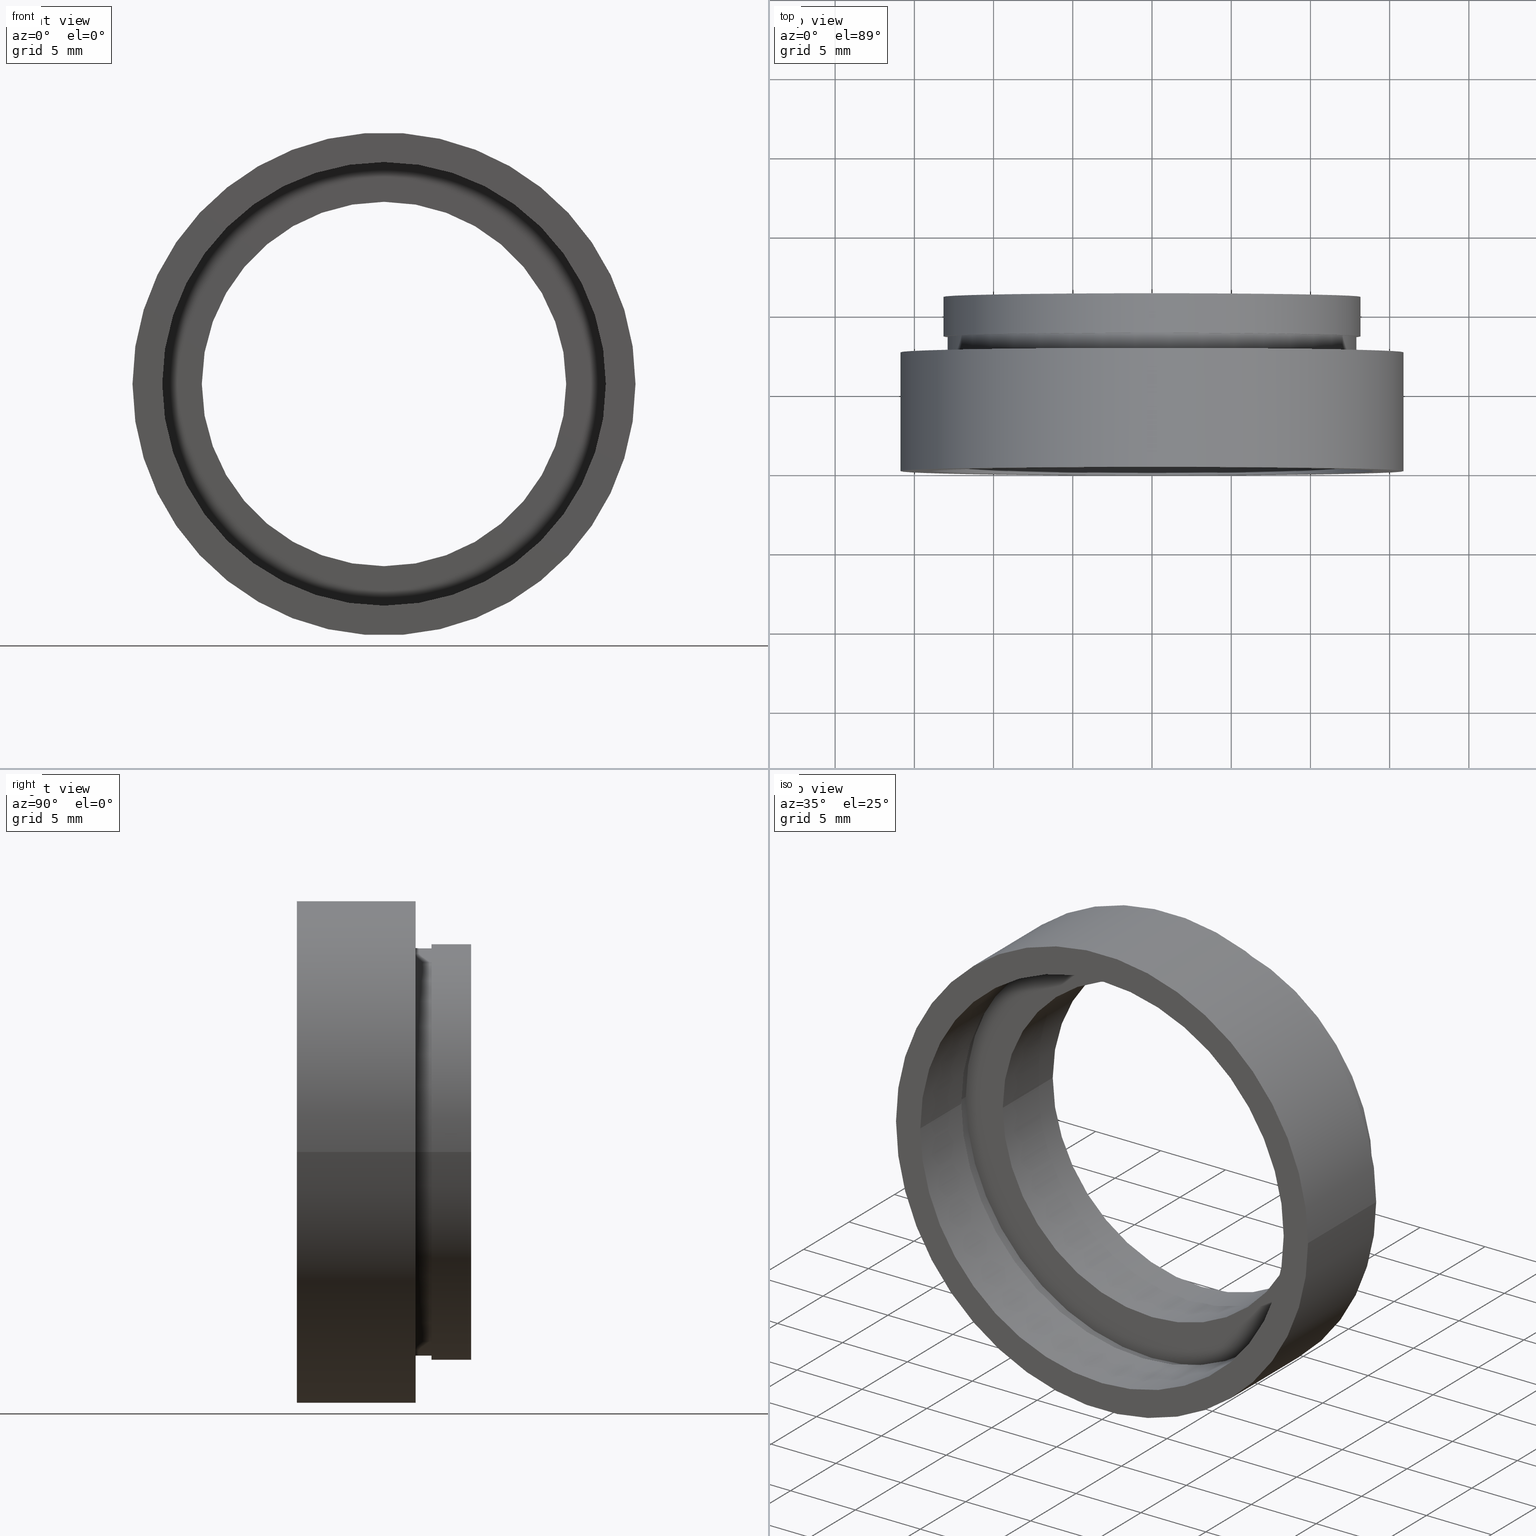
[diagram: canonical four-view strip — front | top / right | iso, engineering-drawing reading convention]
A machine part, canonical four-view strip (front | top / right | iso — engineering-drawing reading convention). The complete STEP part file that produces these views, byte-faithful:
ISO-10303-21;
HEADER;
FILE_DESCRIPTION (( 'STEP AP214' ),
    '1' );
FILE_NAME ('504115.STEP',
    '2019-10-10T01:14:32',
    ( '' ),
    ( '' ),
    'SwSTEP 2.0',
    'SolidWorks 2016',
    '' );
FILE_SCHEMA (( 'AUTOMOTIVE_DESIGN' ));
ENDSEC;

DATA;
#1 = EDGE_CURVE ( 'NONE', #459, #470, #339, .T. ) ;
#2 = VECTOR ( 'NONE', #235, 1000.000000000000000 ) ;
#3 = EDGE_LOOP ( 'NONE', ( #620, #608, #533, #376 ) ) ;
#4 = ORIENTED_EDGE ( 'NONE', *, *, #34, .T. ) ;
#5 = FACE_OUTER_BOUND ( 'NONE', #163, .T. ) ;
#6 = VERTEX_POINT ( 'NONE', #589 ) ;
#7 = UNCERTAINTY_MEASURE_WITH_UNIT (LENGTH_MEASURE( 1.000000000000000100E-005 ), #547, 'distance_accuracy_value', 'NONE');
#8 = AXIS2_PLACEMENT_3D ( 'NONE', #452, #14, #49 ) ;
#9 = CIRCLE ( 'NONE', #486, 15.87500000000000000 ) ;
#10 = ORIENTED_EDGE ( 'NONE', *, *, #146, .T. ) ;
#11 = VERTEX_POINT ( 'NONE', #244 ) ;
#12 = PLANE ( 'NONE',  #205 ) ;
#13 = FACE_BOUND ( 'NONE', #592, .T. ) ;
#14 = DIRECTION ( 'NONE',  ( -1.224646799147351000E-016, 1.000000000000000000, -0.0000000000000000000 ) ) ;
#15 = VERTEX_POINT ( 'NONE', #344 ) ;
#16 = SURFACE_STYLE_FILL_AREA ( #340 ) ;
#17 = CARTESIAN_POINT ( 'NONE',  ( 1.394385078907593200E-015, 5.499999999999996400, 0.0000000000000000000 ) ) ;
#18 = MECHANICAL_DESIGN_GEOMETRIC_PRESENTATION_REPRESENTATION (  '', ( #525 ), #315 ) ;
#19 =( NAMED_UNIT ( * ) SI_UNIT ( $, .STERADIAN. ) SOLID_ANGLE_UNIT ( ) );
#20 = EDGE_LOOP ( 'NONE', ( #598, #274, #438, #618 ) ) ;
#21 = CARTESIAN_POINT ( 'NONE',  ( 0.0000000000000000000, 16.88601823708207700, 0.0000000000000000000 ) ) ;
#22 = AXIS2_PLACEMENT_3D ( 'NONE', #169, #28, #563 ) ;
#23 =( GEOMETRIC_REPRESENTATION_CONTEXT ( 3 ) GLOBAL_UNCERTAINTY_ASSIGNED_CONTEXT ( ( #282 ) ) GLOBAL_UNIT_ASSIGNED_CONTEXT ( ( #416, #373, #519 ) ) REPRESENTATION_CONTEXT ( 'NONE', 'WORKASPACE' ) );
#24 = CARTESIAN_POINT ( 'NONE',  ( 0.0000000000000000000, 16.88601823708207700, 0.0000000000000000000 ) ) ;
#25 = VERTEX_POINT ( 'NONE', #405 ) ;
#26 = EDGE_CURVE ( 'NONE', #422, #333, #98, .T. ) ;
#27 = CARTESIAN_POINT ( 'NONE',  ( 14.35000000000000000, 5.499999999999998200, 1.757368156776451600E-015 ) ) ;
#28 = DIRECTION ( 'NONE',  ( -1.224646799147351000E-016, 1.000000000000000000, -0.0000000000000000000 ) ) ;
#29 = CARTESIAN_POINT ( 'NONE',  ( 14.00000000000000200, 16.88601823708207700, 1.714505518806294800E-015 ) ) ;
#30 = DIRECTION ( 'NONE',  ( -1.000000000000000000, -1.318178933113075200E-016, 0.0000000000000000000 ) ) ;
#31 = ORIENTED_EDGE ( 'NONE', *, *, #87, .T. ) ;
#32 = SURFACE_STYLE_USAGE ( .BOTH. , #121 ) ;
#33 = EDGE_CURVE ( 'NONE', #25, #195, #305, .T. ) ;
#34 = EDGE_CURVE ( 'NONE', #374, #433, #264, .T. ) ;
#35 = CIRCLE ( 'NONE', #227, 14.00000000000000200 ) ;
#36 = ORIENTED_EDGE ( 'NONE', *, *, #162, .F. ) ;
#37 = AXIS2_PLACEMENT_3D ( 'NONE', #550, #413, #256 ) ;
#38 = ORIENTED_EDGE ( 'NONE', *, *, #507, .T. ) ;
#39 = CIRCLE ( 'NONE', #481, 15.87499999999999600 ) ;
#40 = CYLINDRICAL_SURFACE ( 'NONE', #144, 14.00000000000000200 ) ;
#41 =( GEOMETRIC_REPRESENTATION_CONTEXT ( 3 ) GLOBAL_UNCERTAINTY_ASSIGNED_CONTEXT ( ( #571 ) ) GLOBAL_UNIT_ASSIGNED_CONTEXT ( ( #293, #174, #425 ) ) REPRESENTATION_CONTEXT ( 'NONE', 'WORKASPACE' ) );
#42 = CIRCLE ( 'NONE', #365, 14.34999999999999800 ) ;
#43 = ORIENTED_EDGE ( 'NONE', *, *, #511, .F. ) ;
#44 = STYLED_ITEM ( 'NONE', ( #434 ), #302 ) ;
#45 = EDGE_CURVE ( 'NONE', #395, #488, #35, .T. ) ;
#46 = CYLINDRICAL_SURFACE ( 'NONE', #604, 11.50000000000000000 ) ;
#47 = STYLED_ITEM ( 'NONE', ( #280 ), #621 ) ;
#48 = DIRECTION ( 'NONE',  ( -1.224646799147351000E-016, 1.000000000000000000, -0.0000000000000000000 ) ) ;
#49 = DIRECTION ( 'NONE',  ( -1.000000000000000000, -1.239088197126290600E-016, 0.0000000000000000000 ) ) ;
#50 = DIRECTION ( 'NONE',  ( -1.224646799147351000E-016, 1.000000000000000000, -0.0000000000000000000 ) ) ;
#51 = DIRECTION ( 'NONE',  ( -1.224646799147351000E-016, 1.000000000000000000, -0.0000000000000000000 ) ) ;
#52 = CARTESIAN_POINT ( 'NONE',  ( -14.34999999999999800, 16.88601823708207300, 0.0000000000000000000 ) ) ;
#53 = CARTESIAN_POINT ( 'NONE',  ( 0.0000000000000000000, 16.88601823708207700, 0.0000000000000000000 ) ) ;
#54 = DIRECTION ( 'NONE',  ( 1.000000000000000000, 1.224646799147351000E-016, 0.0000000000000000000 ) ) ;
#55 = CARTESIAN_POINT ( 'NONE',  ( 15.87500000000000000, -1.525320158307194900E-015, 1.944126793646423200E-015 ) ) ;
#56 = CYLINDRICAL_SURFACE ( 'NONE', #266, 15.87500000000000000 ) ;
#57 = PRESENTATION_STYLE_ASSIGNMENT (( #501 ) ) ;
#58 = CARTESIAN_POINT ( 'NONE',  ( 1.516849758822328300E-015, 4.499999999999997300, 0.0000000000000000000 ) ) ;
#59 = DIRECTION ( 'NONE',  ( -1.000000000000000000, -1.508455196501571400E-016, 0.0000000000000000000 ) ) ;
#60 = ADVANCED_FACE ( 'NONE', ( #516, #278 ), #610, .F. ) ;
#61 = CARTESIAN_POINT ( 'NONE',  ( 0.0000000000000000000, 16.88601823708207700, 0.0000000000000000000 ) ) ;
#62 = DIRECTION ( 'NONE',  ( -1.000000000000000000, 0.0000000000000000000, 0.0000000000000000000 ) ) ;
#63 = EDGE_CURVE ( 'NONE', #472, #25, #42, .T. ) ;
#64 = ORIENTED_EDGE ( 'NONE', *, *, #495, .F. ) ;
#65 = PRODUCT ( '504115', '504115', '', ( #269 ) ) ;
#66 = CARTESIAN_POINT ( 'NONE',  ( 11.50000000000000200, 10.99999999999999800, 1.408343819019456600E-015 ) ) ;
#67 = VERTEX_POINT ( 'NONE', #27 ) ;
#68 = CARTESIAN_POINT ( 'NONE',  ( -11.49999999999999800, 5.499999999999996400, 0.0000000000000000000 ) ) ;
#69 = PRESENTATION_LAYER_ASSIGNMENT (  '', '', ( #177 ) ) ;
#70 = CARTESIAN_POINT ( 'NONE',  ( 15.87500000000000000, -1.944126793646426700E-016, 0.0000000000000000000 ) ) ;
#71 =( NAMED_UNIT ( * ) SI_UNIT ( $, .STERADIAN. ) SOLID_ANGLE_UNIT ( ) );
#72 = CIRCLE ( 'NONE', #575, 13.15999999999999800 ) ;
#73 = CARTESIAN_POINT ( 'NONE',  ( 1.149455719078122700E-015, 7.499999999999998200, 0.0000000000000000000 ) ) ;
#74 = CARTESIAN_POINT ( 'NONE',  ( 13.16000000000000200, 8.500000000000000000, 1.611635187677917100E-015 ) ) ;
#75 = SURFACE_SIDE_STYLE ('',( #131 ) ) ;
#76 = DIRECTION ( 'NONE',  ( -1.000000000000000000, -1.208866533781747400E-016, 0.0000000000000000000 ) ) ;
#77 = DIRECTION ( 'NONE',  ( -1.000000000000000000, -2.185478394931410600E-016, 0.0000000000000000000 ) ) ;
#78 = MECHANICAL_DESIGN_GEOMETRIC_PRESENTATION_REPRESENTATION (  '', ( #47 ), #107 ) ;
#79 = FACE_OUTER_BOUND ( 'NONE', #584, .T. ) ;
#80 = UNCERTAINTY_MEASURE_WITH_UNIT (LENGTH_MEASURE( 1.000000000000000100E-005 ), #462, 'distance_accuracy_value', 'NONE');
#81 = AXIS2_PLACEMENT_3D ( 'NONE', #204, #599, #59 ) ;
#82 = FACE_OUTER_BOUND ( 'NONE', #582, .T. ) ;
#83 = EDGE_LOOP ( 'NONE', ( #295, #499, #179, #391 ) ) ;
#84 = ADVANCED_FACE ( 'NONE', ( #469, #420 ), #272, .F. ) ;
#85 = MECHANICAL_DESIGN_GEOMETRIC_PRESENTATION_REPRESENTATION (  '', ( #424 ), #396 ) ;
#86 = FACE_OUTER_BOUND ( 'NONE', #612, .T. ) ;
#87 = EDGE_CURVE ( 'NONE', #351, #138, #326, .T. ) ;
#88 = COLOUR_RGB ( '',1.000000000000000000, 1.000000000000000000, 1.000000000000000000 ) ;
#89 = ORIENTED_EDGE ( 'NONE', *, *, #467, .F. ) ;
#90 = ORIENTED_EDGE ( 'NONE', *, *, #325, .T. ) ;
#91 = CYLINDRICAL_SURFACE ( 'NONE', #417, 12.90000000000000000 ) ;
#92 = EDGE_LOOP ( 'NONE', ( #233, #90, #389, #129 ) ) ;
#93 = ORIENTED_EDGE ( 'NONE', *, *, #257, .F. ) ;
#94 = EDGE_CURVE ( 'NONE', #433, #240, #370, .T. ) ;
#95 = PRESENTATION_STYLE_ASSIGNMENT (( #354 ) ) ;
#96 = MECHANICAL_DESIGN_GEOMETRIC_PRESENTATION_REPRESENTATION (  '', ( #44 ), #41 ) ;
#97 = DIRECTION ( 'NONE',  ( -1.000000000000000000, -1.318178933113075200E-016, 0.0000000000000000000 ) ) ;
#98 = LINE ( 'NONE', #102, #239 ) ;
#99 = ORIENTED_EDGE ( 'NONE', *, *, #467, .T. ) ;
#100 = CARTESIAN_POINT ( 'NONE',  ( 12.90000000000000000, 16.88601823708207700, 1.579794370900085700E-015 ) ) ;
#101 = ORIENTED_EDGE ( 'NONE', *, *, #136, .F. ) ;
#102 = CARTESIAN_POINT ( 'NONE',  ( -11.50000000000000000, 16.88601823708207700, 0.0000000000000000000 ) ) ;
#103 = PRESENTATION_STYLE_ASSIGNMENT (( #606 ) ) ;
#104 = CIRCLE ( 'NONE', #236, 14.34999999999999800 ) ;
#105 =( NAMED_UNIT ( * ) PLANE_ANGLE_UNIT ( ) SI_UNIT ( $, .RADIAN. ) );
#106 = CLOSED_SHELL ( 'NONE', ( #113, #387, #621, #302, #624, #260, #323, #196, #411, #577, #60, #552, #84, #181, #352, #277, #549, #384 ) ) ;
#107 =( GEOMETRIC_REPRESENTATION_CONTEXT ( 3 ) GLOBAL_UNCERTAINTY_ASSIGNED_CONTEXT ( ( #80 ) ) GLOBAL_UNIT_ASSIGNED_CONTEXT ( ( #462, #261, #602 ) ) REPRESENTATION_CONTEXT ( 'NONE', 'WORKASPACE' ) );
#108 = FILL_AREA_STYLE_COLOUR ( '', #564 ) ;
#109 = CARTESIAN_POINT ( 'NONE',  ( 14.00000000000000400, 4.500000000000000900, 1.714505518806294800E-015 ) ) ;
#110 = EDGE_LOOP ( 'NONE', ( #99, #141, #226, #500 ) ) ;
#111 = PRESENTATION_STYLE_ASSIGNMENT (( #271 ) ) ;
#112 = DIRECTION ( 'NONE',  ( -1.224646799147351000E-016, 1.000000000000000000, -0.0000000000000000000 ) ) ;
#113 = ADVANCED_FACE ( 'NONE', ( #496 ), #178, .T. ) ;
#114 = AXIS2_PLACEMENT_3D ( 'NONE', #132, #471, #512 ) ;
#115 = EDGE_LOOP ( 'NONE', ( #490, #558 ) ) ;
#116 = CARTESIAN_POINT ( 'NONE',  ( 2.067940818438636100E-015, 0.0000000000000000000, 0.0000000000000000000 ) ) ;
#117 = CARTESIAN_POINT ( 'NONE',  ( 1.516849758822328100E-015, 4.499999999999999100, 0.0000000000000000000 ) ) ;
#118 = FILL_AREA_STYLE_COLOUR ( '', #378 ) ;
#119 = DIRECTION ( 'NONE',  ( -1.000000000000000000, -1.092739197465705300E-016, 0.0000000000000000000 ) ) ;
#120 = AXIS2_PLACEMENT_3D ( 'NONE', #428, #170, #609 ) ;
#121 = SURFACE_SIDE_STYLE ('',( #475 ) ) ;
#122 = DIRECTION ( 'NONE',  ( -1.000000000000000000, -1.224646799147351000E-016, 0.0000000000000000000 ) ) ;
#123 = VERTEX_POINT ( 'NONE', #369 ) ;
#124 = DIRECTION ( 'NONE',  ( -1.224646799147351000E-016, 1.000000000000000000, -0.0000000000000000000 ) ) ;
#125 = EDGE_CURVE ( 'NONE', #219, #11, #217, .T. ) ;
#126 = DIRECTION ( 'NONE',  ( -1.000000000000000000, -1.224646799147351000E-016, 0.0000000000000000000 ) ) ;
#127 = EDGE_LOOP ( 'NONE', ( #524, #10, #234, #43 ) ) ;
#128 = DIRECTION ( 'NONE',  ( -1.000000000000000000, 0.0000000000000000000, 0.0000000000000000000 ) ) ;
#129 = ORIENTED_EDGE ( 'NONE', *, *, #507, .F. ) ;
#130 = DIRECTION ( 'NONE',  ( -1.224646799147351000E-016, 1.000000000000000000, -0.0000000000000000000 ) ) ;
#131 = SURFACE_STYLE_FILL_AREA ( #314 ) ;
#132 = CARTESIAN_POINT ( 'NONE',  ( 14.00000000000000400, 4.499999999999999100, 0.0000000000000000000 ) ) ;
#133 = EDGE_LOOP ( 'NONE', ( #483, #101 ) ) ;
#134 = EDGE_CURVE ( 'NONE', #15, #240, #556, .T. ) ;
#135 = VECTOR ( 'NONE', #591, 1000.000000000000000 ) ;
#136 = EDGE_CURVE ( 'NONE', #614, #333, #538, .T. ) ;
#137 = AXIS2_PLACEMENT_3D ( 'NONE', #70, #430, #122 ) ;
#138 = VERTEX_POINT ( 'NONE', #241 ) ;
#139 = ORIENTED_EDGE ( 'NONE', *, *, #63, .T. ) ;
#140 = PRESENTATION_LAYER_ASSIGNMENT (  '', '', ( #525 ) ) ;
#141 = ORIENTED_EDGE ( 'NONE', *, *, #534, .T. ) ;
#142 = UNCERTAINTY_MEASURE_WITH_UNIT (LENGTH_MEASURE( 1.000000000000000100E-005 ), #317, 'distance_accuracy_value', 'NONE');
#143 = AXIS2_PLACEMENT_3D ( 'NONE', #208, #541, #192 ) ;
#144 = AXIS2_PLACEMENT_3D ( 'NONE', #24, #124, #62 ) ;
#145 = VECTOR ( 'NONE', #449, 1000.000000000000000 ) ;
#146 = EDGE_CURVE ( 'NONE', #11, #351, #437, .T. ) ;
#147 = DIRECTION ( 'NONE',  ( -1.000000000000000000, -1.508455196501571200E-016, 0.0000000000000000000 ) ) ;
#148 = DIRECTION ( 'NONE',  ( -1.224646799147351000E-016, 1.000000000000000000, -0.0000000000000000000 ) ) ;
#149 = PRODUCT_DEFINITION_FORMATION_WITH_SPECIFIED_SOURCE ( '�κ�', '', #65, .NOT_KNOWN. ) ;
#150 = DIRECTION ( 'NONE',  ( -1.224646799147351000E-016, 1.000000000000000000, -0.0000000000000000000 ) ) ;
#151 = CARTESIAN_POINT ( 'NONE',  ( -14.34999999999999600, 5.499999999999994700, 0.0000000000000000000 ) ) ;
#152 = DIRECTION ( 'NONE',  ( -1.000000000000000000, -2.417733067563494800E-016, 0.0000000000000000000 ) ) ;
#153 = DIRECTION ( 'NONE',  ( -1.224646799147351000E-016, 1.000000000000000000, -0.0000000000000000000 ) ) ;
#154 = ORIENTED_EDGE ( 'NONE', *, *, #585, .T. ) ;
#155 = CARTESIAN_POINT ( 'NONE',  ( -14.00000000000000200, 16.88601823708207700, 0.0000000000000000000 ) ) ;
#156 = DIRECTION ( 'NONE',  ( -1.224646799147351000E-016, 1.000000000000000000, -0.0000000000000000000 ) ) ;
#157 = DIRECTION ( 'NONE',  ( -1.224646799147351000E-016, 1.000000000000000000, -0.0000000000000000000 ) ) ;
#158 = MECHANICAL_DESIGN_GEOMETRIC_PRESENTATION_REPRESENTATION (  '', ( #321 ), #187 ) ;
#159 = CARTESIAN_POINT ( 'NONE',  ( 7.208293393765502500E-016, 10.99999999999999600, 0.0000000000000000000 ) ) ;
#160 = DIRECTION ( 'NONE',  ( -1.000000000000000000, -1.224646799147350700E-016, 0.0000000000000000000 ) ) ;
#161 = FILL_AREA_STYLE_COLOUR ( '', #523 ) ;
#162 = EDGE_CURVE ( 'NONE', #472, #67, #588, .T. ) ;
#163 = EDGE_LOOP ( 'NONE', ( #531, #139 ) ) ;
#164 = DIRECTION ( 'NONE',  ( -1.224646799147351000E-016, 1.000000000000000000, -0.0000000000000000000 ) ) ;
#165 = ORIENTED_EDGE ( 'NONE', *, *, #573, .F. ) ;
#166 = CARTESIAN_POINT ( 'NONE',  ( 1.149455719078122700E-015, 7.499999999999998200, 0.0000000000000000000 ) ) ;
#167 = AXIS2_PLACEMENT_3D ( 'NONE', #587, #291, #508 ) ;
#168 =( NAMED_UNIT ( * ) PLANE_ANGLE_UNIT ( ) SI_UNIT ( $, .RADIAN. ) );
#169 = CARTESIAN_POINT ( 'NONE',  ( 2.067940818438636500E-015, -3.469446951953614200E-015, 0.0000000000000000000 ) ) ;
#170 = DIRECTION ( 'NONE',  ( -1.224646799147351000E-016, 1.000000000000000000, -0.0000000000000000000 ) ) ;
#171 = DIRECTION ( 'NONE',  ( 1.224646799147351000E-016, -1.000000000000000000, 0.0000000000000000000 ) ) ;
#172 = CARTESIAN_POINT ( 'NONE',  ( 0.0000000000000000000, 16.88601823708207700, 0.0000000000000000000 ) ) ;
#173 = CARTESIAN_POINT ( 'NONE',  ( 1.026991039163387700E-015, 8.499999999999998200, 0.0000000000000000000 ) ) ;
#174 =( NAMED_UNIT ( * ) PLANE_ANGLE_UNIT ( ) SI_UNIT ( $, .RADIAN. ) );
#175 = EDGE_LOOP ( 'NONE', ( #478, #590 ) ) ;
#176 = CIRCLE ( 'NONE', #385, 11.50000000000000000 ) ;
#177 = STYLED_ITEM ( 'NONE', ( #95 ), #552 ) ;
#178 = CYLINDRICAL_SURFACE ( 'NONE', #517, 15.87500000000000000 ) ;
#179 = ORIENTED_EDGE ( 'NONE', *, *, #532, .T. ) ;
#180 = PRESENTATION_LAYER_ASSIGNMENT (  '', '', ( #44 ) ) ;
#181 = ADVANCED_FACE ( 'NONE', ( #399 ), #435, .T. ) ;
#182 = COLOUR_RGB ( '',1.000000000000000000, 1.000000000000000000, 1.000000000000000000 ) ;
#183 = CYLINDRICAL_SURFACE ( 'NONE', #342, 14.34999999999999800 ) ;
#184 = FACE_BOUND ( 'NONE', #232, .T. ) ;
#185 = EDGE_CURVE ( 'NONE', #394, #614, #330, .T. ) ;
#186 = ORIENTED_EDGE ( 'NONE', *, *, #491, .T. ) ;
#187 =( GEOMETRIC_REPRESENTATION_CONTEXT ( 3 ) GLOBAL_UNCERTAINTY_ASSIGNED_CONTEXT ( ( #457 ) ) GLOBAL_UNIT_ASSIGNED_CONTEXT ( ( #191, #105, #19 ) ) REPRESENTATION_CONTEXT ( 'NONE', 'WORKASPACE' ) );
#188 = EDGE_LOOP ( 'NONE', ( #484, #4, #576, #281 ) ) ;
#189 = EDGE_CURVE ( 'NONE', #240, #433, #616, .T. ) ;
#190 = EDGE_LOOP ( 'NONE', ( #485, #343, #615, #218 ) ) ;
#191 =( LENGTH_UNIT ( ) NAMED_UNIT ( * ) SI_UNIT ( .MILLI., .METRE. ) );
#192 = DIRECTION ( 'NONE',  ( -1.000000000000000000, -1.344746880602176000E-016, 0.0000000000000000000 ) ) ;
#193 = CARTESIAN_POINT ( 'NONE',  ( 11.50000000000000000, 16.88601823708207700, 1.408343819019456200E-015 ) ) ;
#194 = DIRECTION ( 'NONE',  ( -1.000000000000000000, 0.0000000000000000000, 0.0000000000000000000 ) ) ;
#195 = VERTEX_POINT ( 'NONE', #151 ) ;
#196 = ADVANCED_FACE ( 'NONE', ( #505 ), #318, .F. ) ;
#197 = FILL_AREA_STYLE_COLOUR ( '', #201 ) ;
#198 = CARTESIAN_POINT ( 'NONE',  ( 1.026991039163387700E-015, 8.499999999999998200, 0.0000000000000000000 ) ) ;
#199 = PRESENTATION_STYLE_ASSIGNMENT (( #308 ) ) ;
#200 = PRODUCT_RELATED_PRODUCT_CATEGORY ( 'part', '', ( #65 ) ) ;
#201 = COLOUR_RGB ( '',1.000000000000000000, 1.000000000000000000, 1.000000000000000000 ) ;
#202 = DIRECTION ( 'NONE',  ( -1.000000000000000000, -1.239088197126290600E-016, 0.0000000000000000000 ) ) ;
#203 = SURFACE_SIDE_STYLE ('',( #228 ) ) ;
#204 = CARTESIAN_POINT ( 'NONE',  ( 1.394385078907593000E-015, 5.499999999999998200, 0.0000000000000000000 ) ) ;
#205 = AXIS2_PLACEMENT_3D ( 'NONE', #450, #303, #54 ) ;
#206 = SURFACE_SIDE_STYLE ('',( #454 ) ) ;
#207 = ORIENTED_EDGE ( 'NONE', *, *, #33, .F. ) ;
#208 = CARTESIAN_POINT ( 'NONE',  ( 1.026991039163387700E-015, 8.499999999999998200, 0.0000000000000000000 ) ) ;
#209 = CARTESIAN_POINT ( 'NONE',  ( 0.0000000000000000000, 16.88601823708207700, 0.0000000000000000000 ) ) ;
#210 = AXIS2_PLACEMENT_3D ( 'NONE', #456, #48, #346 ) ;
#211 = CARTESIAN_POINT ( 'NONE',  ( 13.16000000000000000, 8.500000000000000000, 0.0000000000000000000 ) ) ;
#212 = FILL_AREA_STYLE_COLOUR ( '', #400 ) ;
#213 = LINE ( 'NONE', #402, #397 ) ;
#214 = DIRECTION ( 'NONE',  ( -1.000000000000000000, -2.185478394931410600E-016, 0.0000000000000000000 ) ) ;
#215 =( LENGTH_UNIT ( ) NAMED_UNIT ( * ) SI_UNIT ( .MILLI., .METRE. ) );
#216 = DIRECTION ( 'NONE',  ( 1.000000000000000000, 1.224646799147351000E-016, 0.0000000000000000000 ) ) ;
#217 = CIRCLE ( 'NONE', #464, 12.90000000000000000 ) ;
#218 = ORIENTED_EDGE ( 'NONE', *, *, #94, .F. ) ;
#219 = VERTEX_POINT ( 'NONE', #368 ) ;
#220 = CARTESIAN_POINT ( 'NONE',  ( 14.00000000000000400, 1.714505518806291700E-015, 1.714505518806294800E-015 ) ) ;
#221 = DIRECTION ( 'NONE',  ( -1.224646799147351000E-016, 1.000000000000000000, -0.0000000000000000000 ) ) ;
#222 = APPLICATION_CONTEXT ( 'automotive_design' ) ;
#223 = PRESENTATION_STYLE_ASSIGNMENT (( #290 ) ) ;
#224 = MANIFOLD_SOLID_BREP ( '��ת1', #106 ) ;
#225 =( GEOMETRIC_REPRESENTATION_CONTEXT ( 3 ) GLOBAL_UNCERTAINTY_ASSIGNED_CONTEXT ( ( #7 ) ) GLOBAL_UNIT_ASSIGNED_CONTEXT ( ( #547, #251, #297 ) ) REPRESENTATION_CONTEXT ( 'NONE', 'WORKASPACE' ) );
#226 = ORIENTED_EDGE ( 'NONE', *, *, #600, .F. ) ;
#227 = AXIS2_PLACEMENT_3D ( 'NONE', #418, #619, #126 ) ;
#228 = SURFACE_STYLE_FILL_AREA ( #506 ) ;
#229 = AXIS2_PLACEMENT_3D ( 'NONE', #211, #560, #522 ) ;
#230 = VECTOR ( 'NONE', #296, 1000.000000000000000 ) ;
#231 = ORIENTED_EDGE ( 'NONE', *, *, #476, .F. ) ;
#232 = EDGE_LOOP ( 'NONE', ( #231, #529 ) ) ;
#233 = ORIENTED_EDGE ( 'NONE', *, *, #534, .F. ) ;
#234 = ORIENTED_EDGE ( 'NONE', *, *, #491, .F. ) ;
#235 = DIRECTION ( 'NONE',  ( -1.224646799147351000E-016, 1.000000000000000000, -0.0000000000000000000 ) ) ;
#236 = AXIS2_PLACEMENT_3D ( 'NONE', #58, #247, #510 ) ;
#237 = VECTOR ( 'NONE', #358, 1000.000000000000000 ) ;
#238 = MECHANICAL_DESIGN_GEOMETRIC_PRESENTATION_REPRESENTATION (  '', ( #622 ), #23 ) ;
#239 = VECTOR ( 'NONE', #250, 1000.000000000000000 ) ;
#240 = VERTEX_POINT ( 'NONE', #603 ) ;
#241 = CARTESIAN_POINT ( 'NONE',  ( -12.89999999999999900, 8.499999999999996400, 0.0000000000000000000 ) ) ;
#242 = ORIENTED_EDGE ( 'NONE', *, *, #479, .F. ) ;
#243 = AXIS2_PLACEMENT_3D ( 'NONE', #61, #409, #310 ) ;
#244 = CARTESIAN_POINT ( 'NONE',  ( 12.90000000000000200, 7.500000000000000000, 1.579794370900085700E-015 ) ) ;
#245 = FACE_OUTER_BOUND ( 'NONE', #3, .T. ) ;
#246 = CARTESIAN_POINT ( 'NONE',  ( 7.208293393765502500E-016, 10.99999999999999600, 0.0000000000000000000 ) ) ;
#247 = DIRECTION ( 'NONE',  ( -1.224646799147351000E-016, 1.000000000000000000, -0.0000000000000000000 ) ) ;
#248 = ORIENTED_EDGE ( 'NONE', *, *, #600, .T. ) ;
#249 = VECTOR ( 'NONE', #543, 1000.000000000000000 ) ;
#250 = DIRECTION ( 'NONE',  ( -1.224646799147351000E-016, 1.000000000000000000, -0.0000000000000000000 ) ) ;
#251 =( NAMED_UNIT ( * ) PLANE_ANGLE_UNIT ( ) SI_UNIT ( $, .RADIAN. ) );
#252 = DIRECTION ( 'NONE',  ( -1.000000000000000000, -1.318178933113075500E-016, 0.0000000000000000000 ) ) ;
#253 = CARTESIAN_POINT ( 'NONE',  ( 1.026991039163387700E-015, 8.499999999999998200, 0.0000000000000000000 ) ) ;
#254 = ORIENTED_EDGE ( 'NONE', *, *, #325, .F. ) ;
#255 = FILL_AREA_STYLE_COLOUR ( '', #182 ) ;
#256 = DIRECTION ( 'NONE',  ( -1.000000000000000000, -1.208866533781747400E-016, 0.0000000000000000000 ) ) ;
#257 = EDGE_CURVE ( 'NONE', #11, #219, #348, .T. ) ;
#258 = DIRECTION ( 'NONE',  ( -1.224646799147351000E-016, 1.000000000000000000, -0.0000000000000000000 ) ) ;
#259 = CARTESIAN_POINT ( 'NONE',  ( 1.394385078907593000E-015, 5.499999999999998200, 0.0000000000000000000 ) ) ;
#260 = ADVANCED_FACE ( 'NONE', ( #245 ), #40, .F. ) ;
#261 =( NAMED_UNIT ( * ) PLANE_ANGLE_UNIT ( ) SI_UNIT ( $, .RADIAN. ) );
#262 = SURFACE_STYLE_USAGE ( .BOTH. , #206 ) ;
#263 = DIRECTION ( 'NONE',  ( -1.224646799147351000E-016, 1.000000000000000000, -0.0000000000000000000 ) ) ;
#264 = LINE ( 'NONE', #489, #2 ) ;
#265 = SURFACE_SIDE_STYLE ('',( #474 ) ) ;
#266 = AXIS2_PLACEMENT_3D ( 'NONE', #172, #263, #214 ) ;
#267 = DIRECTION ( 'NONE',  ( -1.224646799147351000E-016, 1.000000000000000000, -0.0000000000000000000 ) ) ;
#268 = DIRECTION ( 'NONE',  ( -1.224646799147351000E-016, 1.000000000000000000, 0.0000000000000000000 ) ) ;
#269 = PRODUCT_CONTEXT ( 'NONE', #611, 'mechanical' ) ;
#270 = ORIENTED_EDGE ( 'NONE', *, *, #26, .T. ) ;
#271 = SURFACE_STYLE_USAGE ( .BOTH. , #568 ) ;
#272 = PLANE ( 'NONE',  #436 ) ;
#273 = CARTESIAN_POINT ( 'NONE',  ( 0.0000000000000000000, 0.0000000000000000000, 0.0000000000000000000 ) ) ;
#274 = ORIENTED_EDGE ( 'NONE', *, *, #257, .T. ) ;
#275 = DIRECTION ( 'NONE',  ( 0.0000000000000000000, 0.0000000000000000000, 1.000000000000000000 ) ) ;
#276 = MECHANICAL_DESIGN_GEOMETRIC_PRESENTATION_REPRESENTATION (  '', ( #177 ), #304 ) ;
#277 = ADVANCED_FACE ( 'NONE', ( #404 ), #553, .T. ) ;
#278 = FACE_BOUND ( 'NONE', #539, .T. ) ;
#279 = PRESENTATION_LAYER_ASSIGNMENT (  '', '', ( #424 ) ) ;
#280 = PRESENTATION_STYLE_ASSIGNMENT (( #262 ) ) ;
#281 = ORIENTED_EDGE ( 'NONE', *, *, #134, .F. ) ;
#282 = UNCERTAINTY_MEASURE_WITH_UNIT (LENGTH_MEASURE( 1.000000000000000100E-005 ), #416, 'distance_accuracy_value', 'NONE');
#283 = AXIS2_PLACEMENT_3D ( 'NONE', #617, #221, #30 ) ;
#284 = SURFACE_STYLE_FILL_AREA ( #528 ) ;
#285 = VECTOR ( 'NONE', #545, 1000.000000000000000 ) ;
#286 = EDGE_CURVE ( 'NONE', #395, #459, #569, .T. ) ;
#287 = EDGE_LOOP ( 'NONE', ( #361, #93 ) ) ;
#288 = AXIS2_PLACEMENT_3D ( 'NONE', #117, #157, #202 ) ;
#289 = CIRCLE ( 'NONE', #410, 11.50000000000000200 ) ;
#290 = SURFACE_STYLE_USAGE ( .BOTH. , #586 ) ;
#291 = DIRECTION ( 'NONE',  ( -1.224646799147351000E-016, 1.000000000000000000, -0.0000000000000000000 ) ) ;
#292 = DIRECTION ( 'NONE',  ( -1.000000000000000000, -1.344746880602176000E-016, 0.0000000000000000000 ) ) ;
#293 =( LENGTH_UNIT ( ) NAMED_UNIT ( * ) SI_UNIT ( .MILLI., .METRE. ) );
#294 = CARTESIAN_POINT ( 'NONE',  ( 0.0000000000000000000, 16.88601823708207700, 0.0000000000000000000 ) ) ;
#295 = ORIENTED_EDGE ( 'NONE', *, *, #286, .F. ) ;
#296 = DIRECTION ( 'NONE',  ( -1.224646799147351000E-016, 1.000000000000000000, -0.0000000000000000000 ) ) ;
#297 =( NAMED_UNIT ( * ) SI_UNIT ( $, .STERADIAN. ) SOLID_ANGLE_UNIT ( ) );
#298 = DIRECTION ( 'NONE',  ( -1.000000000000000000, -1.318178933113075500E-016, 0.0000000000000000000 ) ) ;
#299 = PRESENTATION_LAYER_ASSIGNMENT (  '', '', ( #47 ) ) ;
#300 = CIRCLE ( 'NONE', #143, 12.90000000000000000 ) ;
#301 = CARTESIAN_POINT ( 'NONE',  ( 14.35000000000000000, 4.499999999999999100, 1.757368156776451600E-015 ) ) ;
#302 = ADVANCED_FACE ( 'NONE', ( #487 ), #593, .F. ) ;
#303 = DIRECTION ( 'NONE',  ( 1.224646799147351000E-016, -1.000000000000000000, 0.0000000000000000000 ) ) ;
#304 =( GEOMETRIC_REPRESENTATION_CONTEXT ( 3 ) GLOBAL_UNCERTAINTY_ASSIGNED_CONTEXT ( ( #331 ) ) GLOBAL_UNIT_ASSIGNED_CONTEXT ( ( #406, #594, #502 ) ) REPRESENTATION_CONTEXT ( 'NONE', 'WORKASPACE' ) );
#305 = LINE ( 'NONE', #52, #230 ) ;
#306 = DIRECTION ( 'NONE',  ( -1.000000000000000000, 0.0000000000000000000, 0.0000000000000000000 ) ) ;
#307 = ORIENTED_EDGE ( 'NONE', *, *, #443, .F. ) ;
#308 = SURFACE_STYLE_USAGE ( .BOTH. , #75 ) ;
#309 = AXIS2_PLACEMENT_3D ( 'NONE', #540, #353, #147 ) ;
#310 = DIRECTION ( 'NONE',  ( -1.000000000000000000, -2.417733067563494800E-016, 0.0000000000000000000 ) ) ;
#311 = DIRECTION ( 'NONE',  ( -1.000000000000000000, -1.344746880602176000E-016, 0.0000000000000000000 ) ) ;
#312 = CARTESIAN_POINT ( 'NONE',  ( 11.50000000000000200, 5.500000000000000000, 0.0000000000000000000 ) ) ;
#313 = FACE_BOUND ( 'NONE', #287, .T. ) ;
#314 = FILL_AREA_STYLE ('',( #212 ) ) ;
#315 =( GEOMETRIC_REPRESENTATION_CONTEXT ( 3 ) GLOBAL_UNCERTAINTY_ASSIGNED_CONTEXT ( ( #597 ) ) GLOBAL_UNIT_ASSIGNED_CONTEXT ( ( #572, #168, #565 ) ) REPRESENTATION_CONTEXT ( 'NONE', 'WORKASPACE' ) );
#316 = PLANE ( 'NONE',  #229 ) ;
#317 =( LENGTH_UNIT ( ) NAMED_UNIT ( * ) SI_UNIT ( .MILLI., .METRE. ) );
#318 = CYLINDRICAL_SURFACE ( 'NONE', #555, 14.00000000000000200 ) ;
#319 = CIRCLE ( 'NONE', #288, 14.00000000000000200 ) ;
#320 = ORIENTED_EDGE ( 'NONE', *, *, #460, .F. ) ;
#321 = STYLED_ITEM ( 'NONE', ( #223 ), #181 ) ;
#322 = ORIENTED_EDGE ( 'NONE', *, *, #162, .T. ) ;
#323 = ADVANCED_FACE ( 'NONE', ( #79, #579 ), #367, .F. ) ;
#324 = ORIENTED_EDGE ( 'NONE', *, *, #460, .T. ) ;
#325 = EDGE_CURVE ( 'NONE', #445, #465, #392, .T. ) ;
#326 = CIRCLE ( 'NONE', #482, 12.90000000000000000 ) ;
#327 = EDGE_LOOP ( 'NONE', ( #242, #165 ) ) ;
#328 = FACE_OUTER_BOUND ( 'NONE', #127, .T. ) ;
#329 =( GEOMETRIC_REPRESENTATION_CONTEXT ( 3 ) GLOBAL_UNCERTAINTY_ASSIGNED_CONTEXT ( ( #142 ) ) GLOBAL_UNIT_ASSIGNED_CONTEXT ( ( #317, #477, #423 ) ) REPRESENTATION_CONTEXT ( 'NONE', 'WORKASPACE' ) );
#330 = LINE ( 'NONE', #193, #249 ) ;
#331 = UNCERTAINTY_MEASURE_WITH_UNIT (LENGTH_MEASURE( 1.000000000000000100E-005 ), #406, 'distance_accuracy_value', 'NONE');
#332 = AXIS2_PLACEMENT_3D ( 'NONE', #17, #347, #596 ) ;
#333 = VERTEX_POINT ( 'NONE', #377 ) ;
#334 = ADVANCED_BREP_SHAPE_REPRESENTATION ( '504115', ( #224, #544 ), #329 ) ;
#335 = CIRCLE ( 'NONE', #332, 14.34999999999999800 ) ;
#336 = STYLED_ITEM ( 'NONE', ( #57 ), #196 ) ;
#337 = CYLINDRICAL_SURFACE ( 'NONE', #243, 14.34999999999999800 ) ;
#338 = PRODUCT_DEFINITION_SHAPE ( 'NONE', 'NONE',  #451 ) ;
#339 = CIRCLE ( 'NONE', #8, 14.00000000000000200 ) ;
#340 = FILL_AREA_STYLE ('',( #497 ) ) ;
#341 = CARTESIAN_POINT ( 'NONE',  ( -12.90000000000000000, 16.88601823708207700, 0.0000000000000000000 ) ) ;
#342 = AXIS2_PLACEMENT_3D ( 'NONE', #294, #548, #152 ) ;
#343 = ORIENTED_EDGE ( 'NONE', *, *, #573, .T. ) ;
#344 = CARTESIAN_POINT ( 'NONE',  ( -13.15999999999999700, 8.499999999999996400, 0.0000000000000000000 ) ) ;
#345 = ORIENTED_EDGE ( 'NONE', *, *, #562, .F. ) ;
#346 = DIRECTION ( 'NONE',  ( -1.000000000000000000, 0.0000000000000000000, 0.0000000000000000000 ) ) ;
#347 = DIRECTION ( 'NONE',  ( -1.224646799147351000E-016, 1.000000000000000000, -0.0000000000000000000 ) ) ;
#348 = CIRCLE ( 'NONE', #583, 12.90000000000000000 ) ;
#349 = CIRCLE ( 'NONE', #37, 14.34999999999999800 ) ;
#350 = DIRECTION ( 'NONE',  ( -1.000000000000000000, 0.0000000000000000000, 0.0000000000000000000 ) ) ;
#351 = VERTEX_POINT ( 'NONE', #515 ) ;
#352 = ADVANCED_FACE ( 'NONE', ( #455, #13 ), #316, .F. ) ;
#353 = DIRECTION ( 'NONE',  ( -1.224646799147351000E-016, 1.000000000000000000, -0.0000000000000000000 ) ) ;
#354 = SURFACE_STYLE_USAGE ( .BOTH. , #203 ) ;
#355 = CARTESIAN_POINT ( 'NONE',  ( -14.00000000000000000, -1.714505518806291700E-015, 0.0000000000000000000 ) ) ;
#356 = DIRECTION ( 'NONE',  ( -1.224646799147351000E-016, 1.000000000000000000, -0.0000000000000000000 ) ) ;
#357 = CARTESIAN_POINT ( 'NONE',  ( -14.00000000000000000, 4.499999999999997300, 0.0000000000000000000 ) ) ;
#358 = DIRECTION ( 'NONE',  ( -1.224646799147351000E-016, 1.000000000000000000, -0.0000000000000000000 ) ) ;
#359 = DIRECTION ( 'NONE',  ( -1.000000000000000000, -1.508455196501571400E-016, 0.0000000000000000000 ) ) ;
#360 = PRESENTATION_LAYER_ASSIGNMENT (  '', '', ( #321 ) ) ;
#361 = ORIENTED_EDGE ( 'NONE', *, *, #125, .F. ) ;
#362 = DIRECTION ( 'NONE',  ( -1.000000000000000000, -1.508455196501571200E-016, 0.0000000000000000000 ) ) ;
#363 = DIRECTION ( 'NONE',  ( -1.224646799147351000E-016, 1.000000000000000000, -0.0000000000000000000 ) ) ;
#364 = FACE_OUTER_BOUND ( 'NONE', #546, .T. ) ;
#365 = AXIS2_PLACEMENT_3D ( 'NONE', #375, #130, #76 ) ;
#366 = APPLICATION_PROTOCOL_DEFINITION ( 'draft international standard', 'automotive_design', 1998, #611 ) ;
#367 = PLANE ( 'NONE',  #137 ) ;
#368 = CARTESIAN_POINT ( 'NONE',  ( -12.89999999999999900, 7.499999999999996400, 0.0000000000000000000 ) ) ;
#369 = CARTESIAN_POINT ( 'NONE',  ( 15.87500000000000000, 7.500000000000000000, 1.944126793646423200E-015 ) ) ;
#370 = CIRCLE ( 'NONE', #283, 13.16000000000000000 ) ;
#371 = APPLICATION_PROTOCOL_DEFINITION ( 'draft international standard', 'automotive_design', 1998, #222 ) ;
#372 = DIRECTION ( 'NONE',  ( -1.224646799147351000E-016, 1.000000000000000000, -0.0000000000000000000 ) ) ;
#373 =( NAMED_UNIT ( * ) PLANE_ANGLE_UNIT ( ) SI_UNIT ( $, .RADIAN. ) );
#374 = VERTEX_POINT ( 'NONE', #74 ) ;
#375 = CARTESIAN_POINT ( 'NONE',  ( 1.516849758822328300E-015, 4.499999999999997300, 0.0000000000000000000 ) ) ;
#376 = ORIENTED_EDGE ( 'NONE', *, *, #532, .F. ) ;
#377 = CARTESIAN_POINT ( 'NONE',  ( -11.50000000000000200, 10.99999999999999500, 0.0000000000000000000 ) ) ;
#378 = COLOUR_RGB ( '',1.000000000000000000, 1.000000000000000000, 1.000000000000000000 ) ;
#379 = CARTESIAN_POINT ( 'NONE',  ( 0.0000000000000000000, 16.88601823708207700, 0.0000000000000000000 ) ) ;
#380 = ORIENTED_EDGE ( 'NONE', *, *, #443, .T. ) ;
#381 = FILL_AREA_STYLE_COLOUR ( '', #509 ) ;
#382 = SURFACE_STYLE_FILL_AREA ( #408 ) ;
#383 = CYLINDRICAL_SURFACE ( 'NONE', #393, 13.15999999999999800 ) ;
#384 = ADVANCED_FACE ( 'NONE', ( #503 ), #56, .T. ) ;
#385 = AXIS2_PLACEMENT_3D ( 'NONE', #259, #153, #359 ) ;
#386 = CIRCLE ( 'NONE', #167, 15.87500000000000000 ) ;
#387 = ADVANCED_FACE ( 'NONE', ( #328 ), #91, .T. ) ;
#388 = PRESENTATION_LAYER_ASSIGNMENT (  '', '', ( #336 ) ) ;
#389 = ORIENTED_EDGE ( 'NONE', *, *, #567, .T. ) ;
#390 = ORIENTED_EDGE ( 'NONE', *, *, #136, .T. ) ;
#391 = ORIENTED_EDGE ( 'NONE', *, *, #476, .T. ) ;
#392 = CIRCLE ( 'NONE', #22, 15.87499999999999600 ) ;
#393 = AXIS2_PLACEMENT_3D ( 'NONE', #209, #605, #306 ) ;
#394 = VERTEX_POINT ( 'NONE', #566 ) ;
#395 = VERTEX_POINT ( 'NONE', #220 ) ;
#396 =( GEOMETRIC_REPRESENTATION_CONTEXT ( 3 ) GLOBAL_UNCERTAINTY_ASSIGNED_CONTEXT ( ( #414 ) ) GLOBAL_UNIT_ASSIGNED_CONTEXT ( ( #215, #557, #71 ) ) REPRESENTATION_CONTEXT ( 'NONE', 'WORKASPACE' ) );
#397 = VECTOR ( 'NONE', #51, 1000.000000000000000 ) ;
#398 = AXIS2_PLACEMENT_3D ( 'NONE', #312, #268, #468 ) ;
#399 = FACE_OUTER_BOUND ( 'NONE', #190, .T. ) ;
#400 = COLOUR_RGB ( '',1.000000000000000000, 1.000000000000000000, 1.000000000000000000 ) ;
#401 = CARTESIAN_POINT ( 'NONE',  ( 14.34999999999999800, 16.88601823708208000, 1.757368156776451600E-015 ) ) ;
#402 = CARTESIAN_POINT ( 'NONE',  ( 15.87500000000000000, 16.88601823708208000, 1.944126793646423200E-015 ) ) ;
#403 = ORIENTED_EDGE ( 'NONE', *, *, #26, .F. ) ;
#404 = FACE_OUTER_BOUND ( 'NONE', #20, .T. ) ;
#405 = CARTESIAN_POINT ( 'NONE',  ( -14.34999999999999600, 4.499999999999995600, 0.0000000000000000000 ) ) ;
#406 =( LENGTH_UNIT ( ) NAMED_UNIT ( * ) SI_UNIT ( .MILLI., .METRE. ) );
#407 = ORIENTED_EDGE ( 'NONE', *, *, #185, .T. ) ;
#408 = FILL_AREA_STYLE ('',( #197 ) ) ;
#409 = DIRECTION ( 'NONE',  ( -1.224646799147351000E-016, 1.000000000000000000, -0.0000000000000000000 ) ) ;
#410 = AXIS2_PLACEMENT_3D ( 'NONE', #159, #554, #362 ) ;
#411 = ADVANCED_FACE ( 'NONE', ( #184, #5 ), #613, .F. ) ;
#412 = DIRECTION ( 'NONE',  ( -1.000000000000000000, -1.224646799147351000E-016, 0.0000000000000000000 ) ) ;
#413 = DIRECTION ( 'NONE',  ( -1.224646799147351000E-016, 1.000000000000000000, -0.0000000000000000000 ) ) ;
#414 = UNCERTAINTY_MEASURE_WITH_UNIT (LENGTH_MEASURE( 1.000000000000000100E-005 ), #215, 'distance_accuracy_value', 'NONE');
#415 = CARTESIAN_POINT ( 'NONE',  ( -15.87499999999999300, -5.413573745600033100E-015, 0.0000000000000000000 ) ) ;
#416 =( LENGTH_UNIT ( ) NAMED_UNIT ( * ) SI_UNIT ( .MILLI., .METRE. ) );
#417 = AXIS2_PLACEMENT_3D ( 'NONE', #607, #372, #128 ) ;
#418 = CARTESIAN_POINT ( 'NONE',  ( 2.067940818438636100E-015, 0.0000000000000000000, 0.0000000000000000000 ) ) ;
#419 = CARTESIAN_POINT ( 'NONE',  ( 1.149455719078122700E-015, 7.499999999999998200, 0.0000000000000000000 ) ) ;
#420 = FACE_OUTER_BOUND ( 'NONE', #175, .T. ) ;
#421 = FILL_AREA_STYLE ('',( #161 ) ) ;
#422 = VERTEX_POINT ( 'NONE', #68 ) ;
#423 =( NAMED_UNIT ( * ) SI_UNIT ( $, .STERADIAN. ) SOLID_ANGLE_UNIT ( ) );
#424 = STYLED_ITEM ( 'NONE', ( #103 ), #224 ) ;
#425 =( NAMED_UNIT ( * ) SI_UNIT ( $, .STERADIAN. ) SOLID_ANGLE_UNIT ( ) );
#426 = DIRECTION ( 'NONE',  ( -1.224646799147351000E-016, 1.000000000000000000, -0.0000000000000000000 ) ) ;
#427 = CARTESIAN_POINT ( 'NONE',  ( 0.0000000000000000000, 16.88601823708207700, 0.0000000000000000000 ) ) ;
#428 = CARTESIAN_POINT ( 'NONE',  ( 0.0000000000000000000, 16.88601823708207700, 0.0000000000000000000 ) ) ;
#429 = DIRECTION ( 'NONE',  ( -1.000000000000000000, -1.344746880602176000E-016, 0.0000000000000000000 ) ) ;
#430 = DIRECTION ( 'NONE',  ( -1.224646799147351000E-016, 1.000000000000000000, 0.0000000000000000000 ) ) ;
#431 = CARTESIAN_POINT ( 'NONE',  ( -13.15999999999999800, 16.88601823708207700, 0.0000000000000000000 ) ) ;
#432 = DIRECTION ( 'NONE',  ( 1.000000000000000000, 0.0000000000000000000, 0.0000000000000000000 ) ) ;
#433 = VERTEX_POINT ( 'NONE', #561 ) ;
#434 = PRESENTATION_STYLE_ASSIGNMENT (( #32 ) ) ;
#435 = CYLINDRICAL_SURFACE ( 'NONE', #210, 13.15999999999999800 ) ;
#436 = AXIS2_PLACEMENT_3D ( 'NONE', #473, #171, #216 ) ;
#437 = LINE ( 'NONE', #100, #145 ) ;
#438 = ORIENTED_EDGE ( 'NONE', *, *, #511, .T. ) ;
#439 = EDGE_CURVE ( 'NONE', #67, #195, #349, .T. ) ;
#440 = FACE_OUTER_BOUND ( 'NONE', #188, .T. ) ;
#441 = ORIENTED_EDGE ( 'NONE', *, *, #562, .T. ) ;
#442 = VECTOR ( 'NONE', #363, 1000.000000000000000 ) ;
#443 = EDGE_CURVE ( 'NONE', #394, #422, #570, .T. ) ;
#444 = PRODUCT_DEFINITION_CONTEXT ( 'detailed design', #222, 'design' ) ;
#445 = VERTEX_POINT ( 'NONE', #55 ) ;
#446 = PRESENTATION_LAYER_ASSIGNMENT (  '', '', ( #622 ) ) ;
#447 = FACE_OUTER_BOUND ( 'NONE', #504, .T. ) ;
#448 = SURFACE_SIDE_STYLE ('',( #382 ) ) ;
#449 = DIRECTION ( 'NONE',  ( -1.224646799147351000E-016, 1.000000000000000000, -0.0000000000000000000 ) ) ;
#450 = CARTESIAN_POINT ( 'NONE',  ( 12.90000000000000200, 7.500000000000000000, 0.0000000000000000000 ) ) ;
#451 = PRODUCT_DEFINITION ( 'δ֪', '', #149, #444 ) ;
#452 = CARTESIAN_POINT ( 'NONE',  ( 1.516849758822328100E-015, 4.499999999999999100, 0.0000000000000000000 ) ) ;
#453 = DIRECTION ( 'NONE',  ( -1.224646799147351000E-016, 1.000000000000000000, -0.0000000000000000000 ) ) ;
#454 = SURFACE_STYLE_FILL_AREA ( #559 ) ;
#455 = FACE_OUTER_BOUND ( 'NONE', #327, .T. ) ;
#456 = CARTESIAN_POINT ( 'NONE',  ( 0.0000000000000000000, 16.88601823708207700, 0.0000000000000000000 ) ) ;
#457 = UNCERTAINTY_MEASURE_WITH_UNIT (LENGTH_MEASURE( 1.000000000000000100E-005 ), #191, 'distance_accuracy_value', 'NONE');
#458 = CARTESIAN_POINT ( 'NONE',  ( 2.067940818438636500E-015, -3.469446951953614200E-015, 0.0000000000000000000 ) ) ;
#459 = VERTEX_POINT ( 'NONE', #109 ) ;
#460 = EDGE_CURVE ( 'NONE', #422, #394, #176, .T. ) ;
#461 = SHAPE_DEFINITION_REPRESENTATION ( #338, #334 ) ;
#462 =( LENGTH_UNIT ( ) NAMED_UNIT ( * ) SI_UNIT ( .MILLI., .METRE. ) );
#463 = ORIENTED_EDGE ( 'NONE', *, *, #63, .F. ) ;
#464 = AXIS2_PLACEMENT_3D ( 'NONE', #73, #520, #292 ) ;
#465 = VERTEX_POINT ( 'NONE', #415 ) ;
#466 = FILL_AREA_STYLE ('',( #118 ) ) ;
#467 = EDGE_CURVE ( 'NONE', #465, #445, #39, .T. ) ;
#468 = DIRECTION ( 'NONE',  ( -1.000000000000000000, -1.224646799147351000E-016, 0.0000000000000000000 ) ) ;
#469 = FACE_BOUND ( 'NONE', #133, .T. ) ;
#470 = VERTEX_POINT ( 'NONE', #357 ) ;
#471 = DIRECTION ( 'NONE',  ( 1.224646799147351000E-016, -1.000000000000000000, 0.0000000000000000000 ) ) ;
#472 = VERTEX_POINT ( 'NONE', #301 ) ;
#473 = CARTESIAN_POINT ( 'NONE',  ( 11.50000000000000200, 10.99999999999999800, 0.0000000000000000000 ) ) ;
#474 = SURFACE_STYLE_FILL_AREA ( #466 ) ;
#475 = SURFACE_STYLE_FILL_AREA ( #421 ) ;
#476 = EDGE_CURVE ( 'NONE', #470, #459, #319, .T. ) ;
#477 =( NAMED_UNIT ( * ) PLANE_ANGLE_UNIT ( ) SI_UNIT ( $, .RADIAN. ) );
#478 = ORIENTED_EDGE ( 'NONE', *, *, #189, .T. ) ;
#479 = EDGE_CURVE ( 'NONE', #15, #374, #551, .T. ) ;
#480 = ORIENTED_EDGE ( 'NONE', *, *, #439, .T. ) ;
#481 = AXIS2_PLACEMENT_3D ( 'NONE', #458, #595, #160 ) ;
#482 = AXIS2_PLACEMENT_3D ( 'NONE', #173, #527, #429 ) ;
#483 = ORIENTED_EDGE ( 'NONE', *, *, #585, .F. ) ;
#484 = ORIENTED_EDGE ( 'NONE', *, *, #479, .T. ) ;
#485 = ORIENTED_EDGE ( 'NONE', *, *, #34, .F. ) ;
#486 = AXIS2_PLACEMENT_3D ( 'NONE', #419, #164, #119 ) ;
#487 = FACE_OUTER_BOUND ( 'NONE', #535, .T. ) ;
#488 = VERTEX_POINT ( 'NONE', #355 ) ;
#489 = CARTESIAN_POINT ( 'NONE',  ( 13.15999999999999800, 16.88601823708207700, 1.611635187677916700E-015 ) ) ;
#490 = ORIENTED_EDGE ( 'NONE', *, *, #536, .T. ) ;
#491 = EDGE_CURVE ( 'NONE', #138, #351, #300, .T. ) ;
#492 = ORIENTED_EDGE ( 'NONE', *, *, #33, .T. ) ;
#493 = AXIS2_PLACEMENT_3D ( 'NONE', #246, #453, #97 ) ;
#494 = CIRCLE ( 'NONE', #514, 14.00000000000000200 ) ;
#495 = EDGE_CURVE ( 'NONE', #25, #472, #104, .T. ) ;
#496 = FACE_OUTER_BOUND ( 'NONE', #110, .T. ) ;
#497 = FILL_AREA_STYLE_COLOUR ( '', #88 ) ;
#498 = CARTESIAN_POINT ( 'NONE',  ( -15.87500000000000000, 16.88601823708207300, 0.0000000000000000000 ) ) ;
#499 = ORIENTED_EDGE ( 'NONE', *, *, #536, .F. ) ;
#500 = ORIENTED_EDGE ( 'NONE', *, *, #567, .F. ) ;
#501 = SURFACE_STYLE_USAGE ( .BOTH. , #448 ) ;
#502 =( NAMED_UNIT ( * ) SI_UNIT ( $, .STERADIAN. ) SOLID_ANGLE_UNIT ( ) );
#503 = FACE_OUTER_BOUND ( 'NONE', #92, .T. ) ;
#504 = EDGE_LOOP ( 'NONE', ( #36, #64, #492, #441 ) ) ;
#505 = FACE_OUTER_BOUND ( 'NONE', #83, .T. ) ;
#506 = FILL_AREA_STYLE ('',( #255 ) ) ;
#507 = EDGE_CURVE ( 'NONE', #123, #6, #386, .T. ) ;
#508 = DIRECTION ( 'NONE',  ( -1.000000000000000000, -1.092739197465705300E-016, 0.0000000000000000000 ) ) ;
#509 = COLOUR_RGB ( '',1.000000000000000000, 1.000000000000000000, 1.000000000000000000 ) ;
#510 = DIRECTION ( 'NONE',  ( -1.000000000000000000, -1.208866533781747400E-016, 0.0000000000000000000 ) ) ;
#511 = EDGE_CURVE ( 'NONE', #219, #138, #623, .T. ) ;
#512 = DIRECTION ( 'NONE',  ( 1.000000000000000000, 1.224646799147351000E-016, 0.0000000000000000000 ) ) ;
#513 = VECTOR ( 'NONE', #148, 1000.000000000000000 ) ;
#514 = AXIS2_PLACEMENT_3D ( 'NONE', #116, #258, #412 ) ;
#515 = CARTESIAN_POINT ( 'NONE',  ( 12.90000000000000200, 8.500000000000000000, 1.579794370900085700E-015 ) ) ;
#516 = FACE_OUTER_BOUND ( 'NONE', #521, .T. ) ;
#517 = AXIS2_PLACEMENT_3D ( 'NONE', #379, #426, #77 ) ;
#518 = DIRECTION ( 'NONE',  ( -1.000000000000000000, 0.0000000000000000000, 0.0000000000000000000 ) ) ;
#519 =( NAMED_UNIT ( * ) SI_UNIT ( $, .STERADIAN. ) SOLID_ANGLE_UNIT ( ) );
#520 = DIRECTION ( 'NONE',  ( -1.224646799147351000E-016, 1.000000000000000000, -0.0000000000000000000 ) ) ;
#521 = EDGE_LOOP ( 'NONE', ( #345, #601 ) ) ;
#522 = DIRECTION ( 'NONE',  ( -1.000000000000000000, -1.224646799147351000E-016, 0.0000000000000000000 ) ) ;
#523 = COLOUR_RGB ( '',1.000000000000000000, 1.000000000000000000, 1.000000000000000000 ) ;
#524 = ORIENTED_EDGE ( 'NONE', *, *, #125, .T. ) ;
#525 = STYLED_ITEM ( 'NONE', ( #111 ), #334 ) ;
#526 = DIRECTION ( 'NONE',  ( -1.224646799147351000E-016, 1.000000000000000000, -0.0000000000000000000 ) ) ;
#527 = DIRECTION ( 'NONE',  ( -1.224646799147351000E-016, 1.000000000000000000, -0.0000000000000000000 ) ) ;
#528 = FILL_AREA_STYLE ('',( #381 ) ) ;
#529 = ORIENTED_EDGE ( 'NONE', *, *, #1, .F. ) ;
#530 = MECHANICAL_DESIGN_GEOMETRIC_PRESENTATION_REPRESENTATION (  '', ( #336 ), #225 ) ;
#531 = ORIENTED_EDGE ( 'NONE', *, *, #495, .T. ) ;
#532 = EDGE_CURVE ( 'NONE', #488, #470, #542, .T. ) ;
#533 = ORIENTED_EDGE ( 'NONE', *, *, #1, .T. ) ;
#534 = EDGE_CURVE ( 'NONE', #445, #123, #213, .T. ) ;
#535 = EDGE_LOOP ( 'NONE', ( #307, #407, #390, #403 ) ) ;
#536 = EDGE_CURVE ( 'NONE', #488, #395, #494, .T. ) ;
#537 = AXIS2_PLACEMENT_3D ( 'NONE', #427, #526, #518 ) ;
#538 = CIRCLE ( 'NONE', #309, 11.50000000000000200 ) ;
#539 = EDGE_LOOP ( 'NONE', ( #324, #380 ) ) ;
#540 = CARTESIAN_POINT ( 'NONE',  ( 7.208293393765502500E-016, 10.99999999999999600, 0.0000000000000000000 ) ) ;
#541 = DIRECTION ( 'NONE',  ( -1.224646799147351000E-016, 1.000000000000000000, -0.0000000000000000000 ) ) ;
#542 = LINE ( 'NONE', #155, #513 ) ;
#543 = DIRECTION ( 'NONE',  ( -1.224646799147351000E-016, 1.000000000000000000, -0.0000000000000000000 ) ) ;
#544 = AXIS2_PLACEMENT_3D ( 'NONE', #273, #275, #432 ) ;
#545 = DIRECTION ( 'NONE',  ( -1.224646799147351000E-016, 1.000000000000000000, -0.0000000000000000000 ) ) ;
#546 = EDGE_LOOP ( 'NONE', ( #574, #320, #270, #154 ) ) ;
#547 =( LENGTH_UNIT ( ) NAMED_UNIT ( * ) SI_UNIT ( .MILLI., .METRE. ) );
#548 = DIRECTION ( 'NONE',  ( -1.224646799147351000E-016, 1.000000000000000000, -0.0000000000000000000 ) ) ;
#549 = ADVANCED_FACE ( 'NONE', ( #313, #86 ), #12, .F. ) ;
#550 = CARTESIAN_POINT ( 'NONE',  ( 1.394385078907593200E-015, 5.499999999999996400, 0.0000000000000000000 ) ) ;
#551 = CIRCLE ( 'NONE', #581, 13.15999999999999800 ) ;
#552 = ADVANCED_FACE ( 'NONE', ( #364 ), #46, .F. ) ;
#553 = CYLINDRICAL_SURFACE ( 'NONE', #120, 12.90000000000000000 ) ;
#554 = DIRECTION ( 'NONE',  ( -1.224646799147351000E-016, 1.000000000000000000, -0.0000000000000000000 ) ) ;
#555 = AXIS2_PLACEMENT_3D ( 'NONE', #53, #50, #350 ) ;
#556 = LINE ( 'NONE', #431, #285 ) ;
#557 =( NAMED_UNIT ( * ) PLANE_ANGLE_UNIT ( ) SI_UNIT ( $, .RADIAN. ) );
#558 = ORIENTED_EDGE ( 'NONE', *, *, #45, .T. ) ;
#559 = FILL_AREA_STYLE ('',( #108 ) ) ;
#560 = DIRECTION ( 'NONE',  ( -1.224646799147351000E-016, 1.000000000000000000, 0.0000000000000000000 ) ) ;
#561 = CARTESIAN_POINT ( 'NONE',  ( 13.16000000000000200, 10.99999999999999800, 1.611635187677917100E-015 ) ) ;
#562 = EDGE_CURVE ( 'NONE', #195, #67, #335, .T. ) ;
#563 = DIRECTION ( 'NONE',  ( -1.000000000000000000, -1.224646799147350700E-016, 0.0000000000000000000 ) ) ;
#564 = COLOUR_RGB ( '',1.000000000000000000, 1.000000000000000000, 1.000000000000000000 ) ;
#565 =( NAMED_UNIT ( * ) SI_UNIT ( $, .STERADIAN. ) SOLID_ANGLE_UNIT ( ) );
#566 = CARTESIAN_POINT ( 'NONE',  ( 11.50000000000000200, 5.500000000000000000, 1.408343819019456600E-015 ) ) ;
#567 = EDGE_CURVE ( 'NONE', #465, #6, #578, .T. ) ;
#568 = SURFACE_SIDE_STYLE ('',( #284 ) ) ;
#569 = LINE ( 'NONE', #29, #442 ) ;
#570 = CIRCLE ( 'NONE', #81, 11.50000000000000000 ) ;
#571 = UNCERTAINTY_MEASURE_WITH_UNIT (LENGTH_MEASURE( 1.000000000000000100E-005 ), #293, 'distance_accuracy_value', 'NONE');
#572 =( LENGTH_UNIT ( ) NAMED_UNIT ( * ) SI_UNIT ( .MILLI., .METRE. ) );
#573 = EDGE_CURVE ( 'NONE', #374, #15, #72, .T. ) ;
#574 = ORIENTED_EDGE ( 'NONE', *, *, #185, .F. ) ;
#575 = AXIS2_PLACEMENT_3D ( 'NONE', #198, #356, #252 ) ;
#576 = ORIENTED_EDGE ( 'NONE', *, *, #189, .F. ) ;
#577 = ADVANCED_FACE ( 'NONE', ( #447 ), #183, .F. ) ;
#578 = LINE ( 'NONE', #498, #135 ) ;
#579 = FACE_BOUND ( 'NONE', #115, .T. ) ;
#580 = VECTOR ( 'NONE', #150, 1000.000000000000000 ) ;
#581 = AXIS2_PLACEMENT_3D ( 'NONE', #253, #156, #298 ) ;
#582 = EDGE_LOOP ( 'NONE', ( #463, #322, #480, #207 ) ) ;
#583 = AXIS2_PLACEMENT_3D ( 'NONE', #166, #267, #311 ) ;
#584 = EDGE_LOOP ( 'NONE', ( #89, #254 ) ) ;
#585 = EDGE_CURVE ( 'NONE', #333, #614, #289, .T. ) ;
#586 = SURFACE_SIDE_STYLE ('',( #16 ) ) ;
#587 = CARTESIAN_POINT ( 'NONE',  ( 1.149455719078122700E-015, 7.499999999999998200, 0.0000000000000000000 ) ) ;
#588 = LINE ( 'NONE', #401, #580 ) ;
#589 = CARTESIAN_POINT ( 'NONE',  ( -15.87500000000000000, 7.499999999999996400, 0.0000000000000000000 ) ) ;
#590 = ORIENTED_EDGE ( 'NONE', *, *, #94, .T. ) ;
#591 = DIRECTION ( 'NONE',  ( -1.224646799147351000E-016, 1.000000000000000000, -0.0000000000000000000 ) ) ;
#592 = EDGE_LOOP ( 'NONE', ( #186, #31 ) ) ;
#593 = CYLINDRICAL_SURFACE ( 'NONE', #537, 11.50000000000000000 ) ;
#594 =( NAMED_UNIT ( * ) PLANE_ANGLE_UNIT ( ) SI_UNIT ( $, .RADIAN. ) );
#595 = DIRECTION ( 'NONE',  ( -1.224646799147351000E-016, 1.000000000000000000, -0.0000000000000000000 ) ) ;
#596 = DIRECTION ( 'NONE',  ( -1.000000000000000000, -1.208866533781747400E-016, 0.0000000000000000000 ) ) ;
#597 = UNCERTAINTY_MEASURE_WITH_UNIT (LENGTH_MEASURE( 1.000000000000000100E-005 ), #572, 'distance_accuracy_value', 'NONE');
#598 = ORIENTED_EDGE ( 'NONE', *, *, #146, .F. ) ;
#599 = DIRECTION ( 'NONE',  ( -1.224646799147351000E-016, 1.000000000000000000, -0.0000000000000000000 ) ) ;
#600 = EDGE_CURVE ( 'NONE', #6, #123, #9, .T. ) ;
#601 = ORIENTED_EDGE ( 'NONE', *, *, #439, .F. ) ;
#602 =( NAMED_UNIT ( * ) SI_UNIT ( $, .STERADIAN. ) SOLID_ANGLE_UNIT ( ) );
#603 = CARTESIAN_POINT ( 'NONE',  ( -13.16000000000000000, 10.99999999999999500, 0.0000000000000000000 ) ) ;
#604 = AXIS2_PLACEMENT_3D ( 'NONE', #21, #112, #194 ) ;
#605 = DIRECTION ( 'NONE',  ( -1.224646799147351000E-016, 1.000000000000000000, -0.0000000000000000000 ) ) ;
#606 = SURFACE_STYLE_USAGE ( .BOTH. , #265 ) ;
#607 = CARTESIAN_POINT ( 'NONE',  ( 0.0000000000000000000, 16.88601823708207700, 0.0000000000000000000 ) ) ;
#608 = ORIENTED_EDGE ( 'NONE', *, *, #286, .T. ) ;
#609 = DIRECTION ( 'NONE',  ( -1.000000000000000000, 0.0000000000000000000, 0.0000000000000000000 ) ) ;
#610 = PLANE ( 'NONE',  #398 ) ;
#611 = APPLICATION_CONTEXT ( 'automotive_design' ) ;
#612 = EDGE_LOOP ( 'NONE', ( #248, #38 ) ) ;
#613 = PLANE ( 'NONE',  #114 ) ;
#614 = VERTEX_POINT ( 'NONE', #66 ) ;
#615 = ORIENTED_EDGE ( 'NONE', *, *, #134, .T. ) ;
#616 = CIRCLE ( 'NONE', #493, 13.16000000000000000 ) ;
#617 = CARTESIAN_POINT ( 'NONE',  ( 7.208293393765502500E-016, 10.99999999999999600, 0.0000000000000000000 ) ) ;
#618 = ORIENTED_EDGE ( 'NONE', *, *, #87, .F. ) ;
#619 = DIRECTION ( 'NONE',  ( -1.224646799147351000E-016, 1.000000000000000000, -0.0000000000000000000 ) ) ;
#620 = ORIENTED_EDGE ( 'NONE', *, *, #45, .F. ) ;
#621 = ADVANCED_FACE ( 'NONE', ( #440 ), #383, .T. ) ;
#622 = STYLED_ITEM ( 'NONE', ( #199 ), #260 ) ;
#623 = LINE ( 'NONE', #341, #237 ) ;
#624 = ADVANCED_FACE ( 'NONE', ( #82 ), #337, .F. ) ;
ENDSEC;
END-ISO-10303-21;
